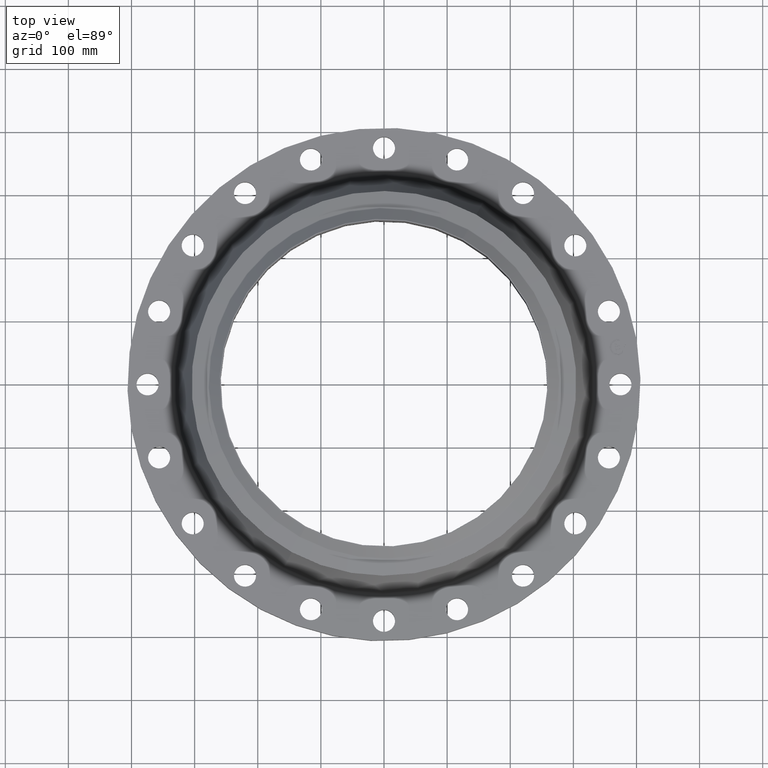
[diagram: clean part render]
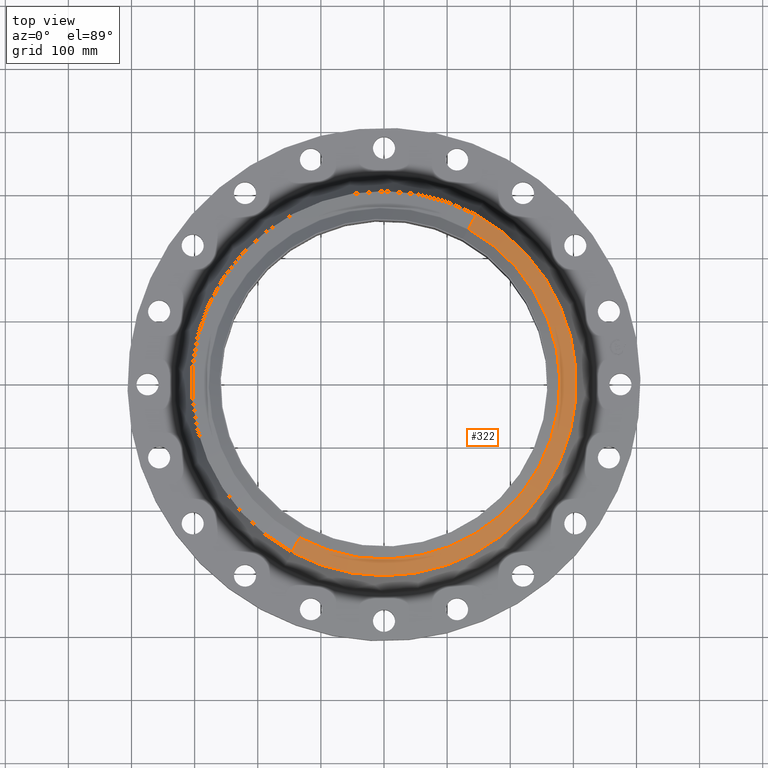
[diagram: same view with one face highlighted and labeled with its STEP entity id]
A machine part, top view. The second image highlights one B-rep face of the part: STEP entity #322.
In plain terms, the highlighted conical surface has half-angle 80 deg.
Its self-contained STEP definition (entity closure, byte-faithful):
#270=AXIS2_PLACEMENT_3D('Circle Axis2P3D',#268,#269,$) ;
#295=AXIS2_PLACEMENT_3D('Cone Axis2P3D',#292,#293,#294) ;
#306=AXIS2_PLACEMENT_3D('Circle Axis2P3D',#304,#305,$) ;
#258=CARTESIAN_POINT('Vertex',(-5.75310646327,-10.5309907427,5.28520344227)) ;
#265=CARTESIAN_POINT('Vertex',(5.75310646327,10.5309907427,5.28520344227)) ;
#268=CARTESIAN_POINT('Axis2P3D Location',(0.,0.,5.28520344227)) ;
#292=CARTESIAN_POINT('Axis2P3D Location',(0.,0.,5.46715126594)) ;
#297=CARTESIAN_POINT('Line Origine',(5.50575227786,10.0782119434,5.37617735411)) ;
#301=CARTESIAN_POINT('Vertex',(5.25839809244,9.62543314408,5.46715126594)) ;
#304=CARTESIAN_POINT('Axis2P3D Location',(0.,0.,5.46715126594)) ;
#308=CARTESIAN_POINT('Vertex',(-5.25839809244,-9.62543314408,5.46715126594)) ;
#311=CARTESIAN_POINT('Line Origine',(-5.50575227786,-10.0782119434,5.37617735411)) ;
#269=DIRECTION('Axis2P3D Direction',(0.,0.,-0.0393700787402)) ;
#293=DIRECTION('Axis2P3D Direction',(-0.,-0.,-0.0393700787402)) ;
#294=DIRECTION('Axis2P3D XDirection',(-0.0188750212049,-0.0345504945626,0.)) ;
#298=DIRECTION('Vector Direction',(0.0185882672208,0.0340255949157,-0.00683654242783)) ;
#305=DIRECTION('Axis2P3D Direction',(0.,-0.,-0.0393700787402)) ;
#312=DIRECTION('Vector Direction',(-0.0185882672208,-0.0340255949157,-0.00683654242783)) ;
#299=VECTOR('Line Direction',#298,0.0393700787402) ;
#313=VECTOR('Line Direction',#312,0.0393700787402) ;
#317=ORIENTED_EDGE('',*,*,#303,.F.) ;
#318=ORIENTED_EDGE('',*,*,#310,.T.) ;
#319=ORIENTED_EDGE('',*,*,#315,.T.) ;
#320=ORIENTED_EDGE('',*,*,#272,.F.) ;
#322=ADVANCED_FACE('PartBody',(#321),#296,.T.) ;
#271=CIRCLE('generated circle',#270,12.) ;
#307=CIRCLE('generated circle',#306,10.9681226155) ;
#296=CONICAL_SURFACE('Cone',#295,10.9681226155,1.3962634016) ;
#272=EDGE_CURVE('',#266,#259,#271,.T.) ;
#303=EDGE_CURVE('',#302,#266,#300,.T.) ;
#310=EDGE_CURVE('',#302,#309,#307,.T.) ;
#315=EDGE_CURVE('',#309,#259,#314,.T.) ;
#316=EDGE_LOOP('',(#317,#318,#319,#320)) ;
#321=FACE_OUTER_BOUND('',#316,.T.) ;
#300=LINE('Line',#297,#299) ;
#314=LINE('Line',#311,#313) ;
#259=VERTEX_POINT('',#258) ;
#266=VERTEX_POINT('',#265) ;
#302=VERTEX_POINT('',#301) ;
#309=VERTEX_POINT('',#308) ;